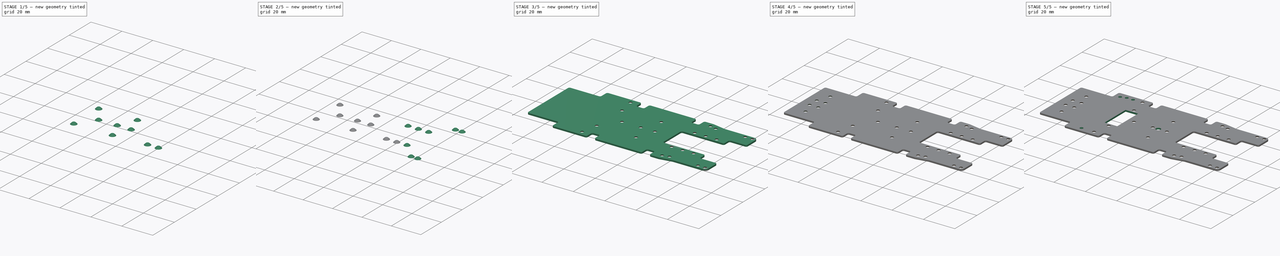
[diagram: build sequence overview — one tinted view per stage of 5, left to right]
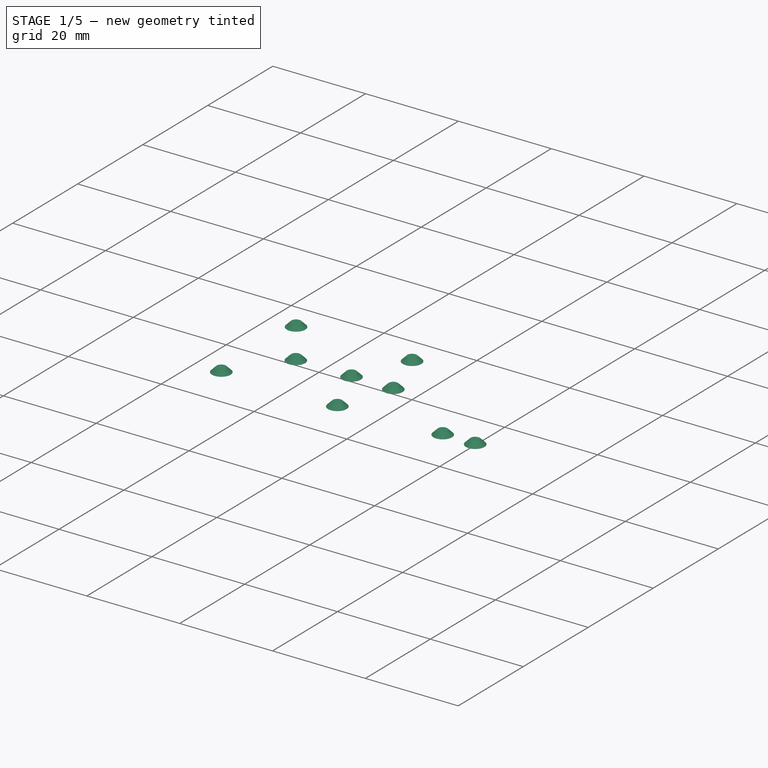
[diagram: stage 1 of 5 — iso view after this stage's code; geometry added in this stage tinted green]
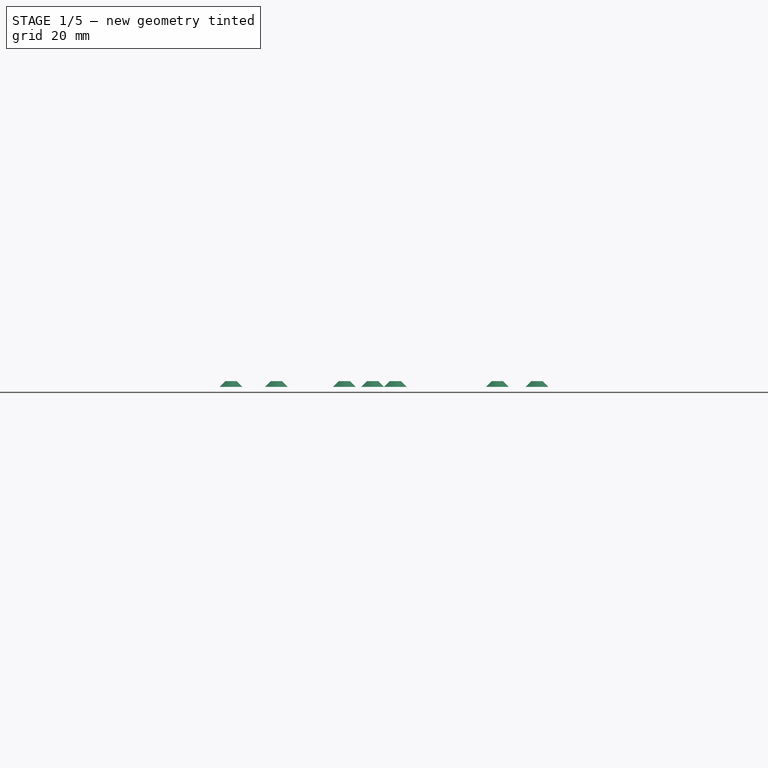
[diagram: stage 1 of 5 — front view after this stage's code; geometry added in this stage tinted green]
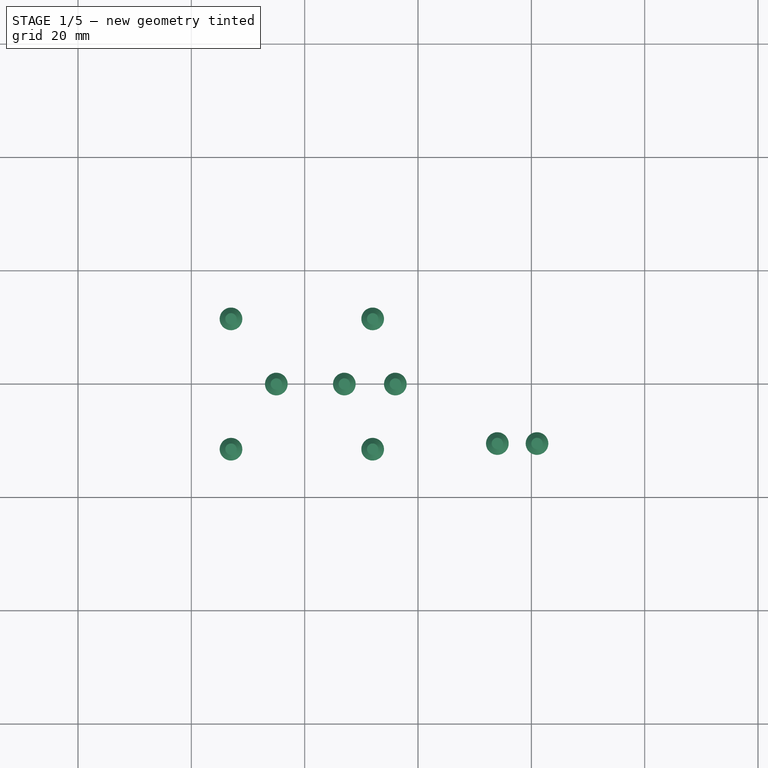
[diagram: stage 1 of 5 — top view after this stage's code; geometry added in this stage tinted green]
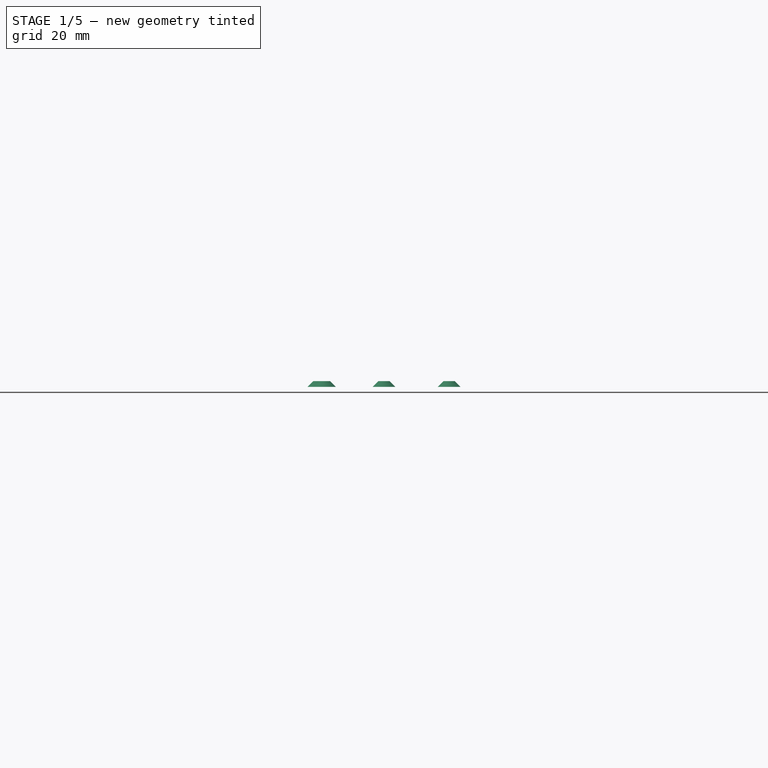
[diagram: stage 1 of 5 — right view after this stage's code; geometry added in this stage tinted green]
FCSTD DOCUMENT  (FreeCAD 0.14R3702 (Git))
Label: scaleauto-a
License: CC-BY 3.0
LicenseURL: http://creativecommons.org/licenses/by/3.0/
objects: Sketcher::SketchObject×65, Part::Loft×29, Part::Extrusion×7, Part::MultiFuse×3, Part::Cut×3, Part::Mirroring×1
note: 108 computed .brp shape members not serialized (recipe doc carries the construction recipe); baked Part::Feature solids carry a one-line shape summary decoded from their .brp

FEATURE [Sketcher::SketchObject] Sketch045
  Placement = pos=(0,0,1) rot=(0,0,1;0rad)
  sketch-geometry (1):
    g0: Circle CenterX=-43.5 CenterY=11 CenterZ=0 NormalX=0 NormalY=0 NormalZ=1 Radius=1
FEATURE [Sketcher::SketchObject] Sketch046
  sketch-geometry (1):
    g0: Circle CenterX=-43.5 CenterY=11 CenterZ=0 NormalX=0 NormalY=0 NormalZ=1 Radius=2
FEATURE [Part::Loft] Loft020
  Closed = false
  Placement = pos=(84.5,-21.5,0) rot=(0,0,1;0rad)
  Ruled = false
  Sections = -> [Sketch046,Sketch045]
  Solid = true
FEATURE [Sketcher::SketchObject] Sketch047
  Placement = pos=(0,0,1) rot=(0,0,1;0rad)
  sketch-geometry (1):
    g0: Circle CenterX=-43.5 CenterY=11 CenterZ=0 NormalX=0 NormalY=0 NormalZ=1 Radius=1
FEATURE [Sketcher::SketchObject] Sketch048
  sketch-geometry (1):
    g0: Circle CenterX=-43.5 CenterY=11 CenterZ=0 NormalX=0 NormalY=0 NormalZ=1 Radius=2
FEATURE [Part::Loft] Loft021
  Closed = false
  Placement = pos=(77.5,-21.5,0) rot=(0,0,1;0rad)
  Ruled = false
  Sections = -> [Sketch048,Sketch047]
  Solid = true
FEATURE [Sketcher::SketchObject] Sketch049
  Placement = pos=(-17,-9.5,0) rot=(0,0,1;0rad)
  sketch-geometry (4):
    g0: LineSegment StartX=0 StartY=0 StartZ=0 EndX=8 EndY=0 EndZ=0
    g1: LineSegment StartX=8 StartY=0 StartZ=0 EndX=8 EndY=19 EndZ=0
    g2: LineSegment StartX=8 StartY=19 StartZ=0 EndX=0 EndY=19 EndZ=0
    g3: LineSegment StartX=0 StartY=19 StartZ=0 EndX=0 EndY=0 EndZ=0
  constraints (9):
    c: Coincident(g0,g1)
    c: Coincident(g1,g2)
    c: Coincident(g2,g3)
    c: Coincident(g3,g0)
    c: Horizontal(g0)
    c: Horizontal(g2)
    c: Vertical(g1)
    c: Vertical(g3)
    c: Coincident(g0,g-1)
FEATURE [Sketcher::SketchObject] Sketch050
  Placement = pos=(0,0,1) rot=(0,0,1;0rad)
  sketch-geometry (1):
    g0: Circle CenterX=-43.5 CenterY=11 CenterZ=0 NormalX=0 NormalY=0 NormalZ=1 Radius=1
FEATURE [Sketcher::SketchObject] Sketch051
  sketch-geometry (1):
    g0: Circle CenterX=-43.5 CenterY=11 CenterZ=0 NormalX=0 NormalY=0 NormalZ=1 Radius=2
FEATURE [Part::Loft] Loft022
  Closed = false
  Placement = pos=(30.5,-22.5,0) rot=(0,0,1;0rad)
  Ruled = false
  Sections = -> [Sketch051,Sketch050]
  Solid = true
FEATURE [Sketcher::SketchObject] Sketch052
  Placement = pos=(0,0,1) rot=(0,0,1;0rad)
  sketch-geometry (1):
    g0: Circle CenterX=-43.5 CenterY=11 CenterZ=0 NormalX=0 NormalY=0 NormalZ=1 Radius=1
FEATURE [Sketcher::SketchObject] Sketch053
  sketch-geometry (1):
    g0: Circle CenterX=-43.5 CenterY=11 CenterZ=0 NormalX=0 NormalY=0 NormalZ=1 Radius=2
FEATURE [Part::Loft] Loft023
  Closed = false
  Placement = pos=(30.5,0.5,0) rot=(0,0,1;0rad)
  Ruled = false
  Sections = -> [Sketch053,Sketch052]
  Solid = true
FEATURE [Sketcher::SketchObject] Sketch054
  Placement = pos=(0,0,1) rot=(0,0,1;0rad)
  sketch-geometry (1):
    g0: Circle CenterX=-43.5 CenterY=11 CenterZ=0 NormalX=0 NormalY=0 NormalZ=1 Radius=1
FEATURE [Sketcher::SketchObject] Sketch055
  sketch-geometry (1):
    g0: Circle CenterX=-43.5 CenterY=11 CenterZ=0 NormalX=0 NormalY=0 NormalZ=1 Radius=2
FEATURE [Part::Loft] Loft024
  Closed = false
  Placement = pos=(55.5,-22.5,0) rot=(0,0,1;0rad)
  Ruled = false
  Sections = -> [Sketch055,Sketch054]
  Solid = true
FEATURE [Sketcher::SketchObject] Sketch056
  Placement = pos=(0,0,1) rot=(0,0,1;0rad)
  sketch-geometry (1):
    g0: Circle CenterX=-43.5 CenterY=11 CenterZ=0 NormalX=0 NormalY=0 NormalZ=1 Radius=1
FEATURE [Sketcher::SketchObject] Sketch057
  sketch-geometry (1):
    g0: Circle CenterX=-43.5 CenterY=11 CenterZ=0 NormalX=0 NormalY=0 NormalZ=1 Radius=2
FEATURE [Part::Loft] Loft025
  Closed = false
  Placement = pos=(55.5,0.5,0) rot=(0,0,1;0rad)
  Ruled = false
  Sections = -> [Sketch057,Sketch056]
  Solid = true
FEATURE [Sketcher::SketchObject] Sketch058
  Placement = pos=(0,0,1) rot=(0,0,1;0rad)
  sketch-geometry (1):
    g0: Circle CenterX=-43.5 CenterY=11 CenterZ=0 NormalX=0 NormalY=0 NormalZ=1 Radius=1
FEATURE [Sketcher::SketchObject] Sketch059
  sketch-geometry (1):
    g0: Circle CenterX=-43.5 CenterY=11 CenterZ=0 NormalX=0 NormalY=0 NormalZ=1 Radius=2
FEATURE [Part::Loft] Loft026
  Closed = false
  Placement = pos=(38.5,-11,0) rot=(0,0,1;0rad)
  Ruled = false
  Sections = -> [Sketch059,Sketch058]
  Solid = true
FEATURE [Sketcher::SketchObject] Sketch060
  Placement = pos=(0,0,1) rot=(0,0,1;0rad)
  sketch-geometry (1):
    g0: Circle CenterX=-43.5 CenterY=11 CenterZ=0 NormalX=0 NormalY=0 NormalZ=1 Radius=1
FEATURE [Sketcher::SketchObject] Sketch061
  sketch-geometry (1):
    g0: Circle CenterX=-43.5 CenterY=11 CenterZ=0 NormalX=0 NormalY=0 NormalZ=1 Radius=2
FEATURE [Part::Loft] Loft027
  Closed = false
  Placement = pos=(50.5,-11,0) rot=(0,0,1;0rad)
  Ruled = false
  Sections = -> [Sketch061,Sketch060]
  Solid = true
FEATURE [Sketcher::SketchObject] Sketch062
  Placement = pos=(0,0,1) rot=(0,0,1;0rad)
  sketch-geometry (1):
    g0: Circle CenterX=-43.5 CenterY=11 CenterZ=0 NormalX=0 NormalY=0 NormalZ=1 Radius=1
FEATURE [Sketcher::SketchObject] Sketch063
  sketch-geometry (1):
    g0: Circle CenterX=-43.5 CenterY=11 CenterZ=0 NormalX=0 NormalY=0 NormalZ=1 Radius=2
FEATURE [Part::Loft] Loft028
  Closed = false
  Placement = pos=(59.5,-11,0) rot=(0,0,1;0rad)
  Ruled = false
  Sections = -> [Sketch063,Sketch062]
  Solid = true
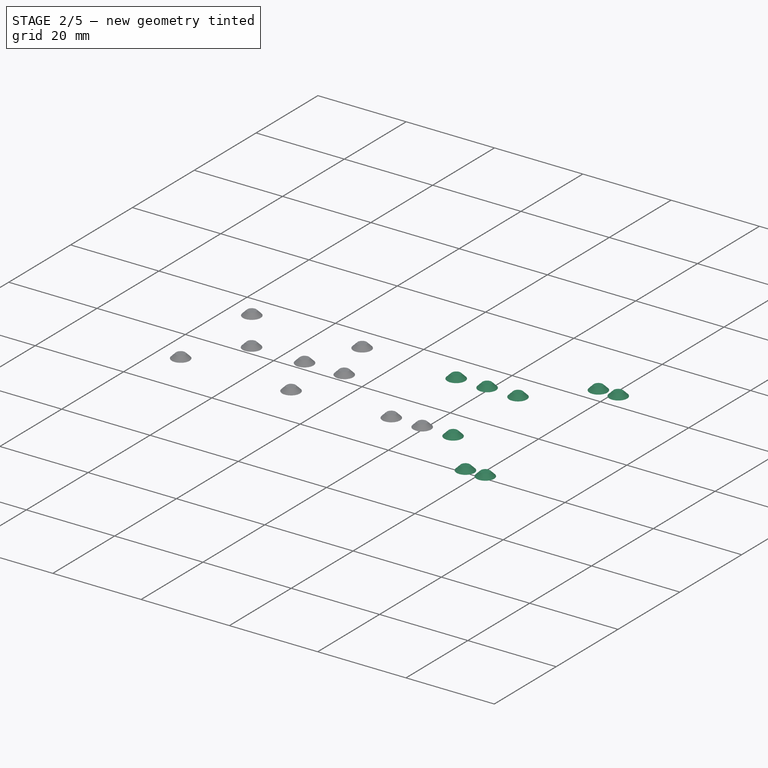
[diagram: stage 2 of 5 — iso view after this stage's code; geometry added in this stage tinted green]
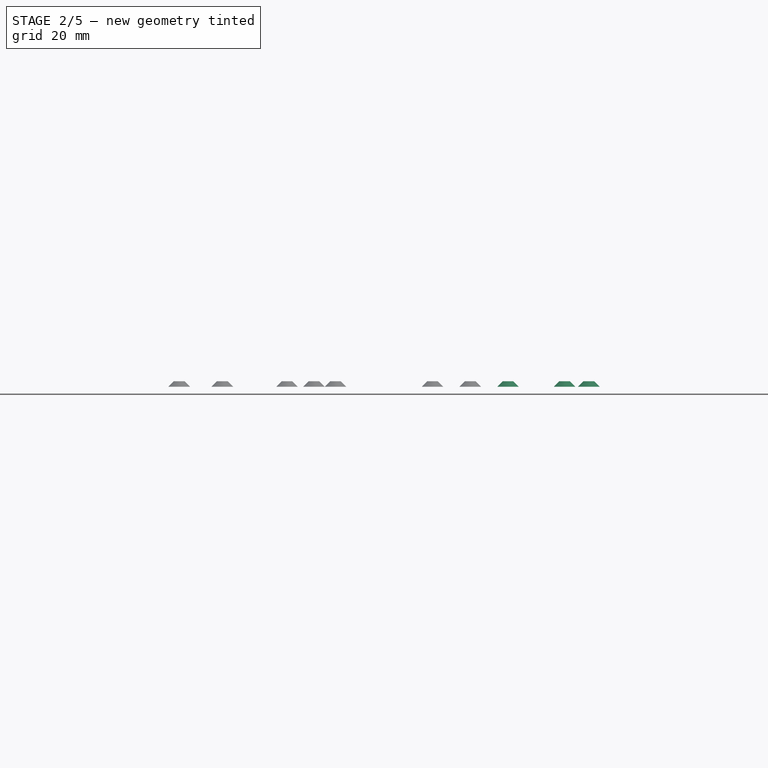
[diagram: stage 2 of 5 — front view after this stage's code; geometry added in this stage tinted green]
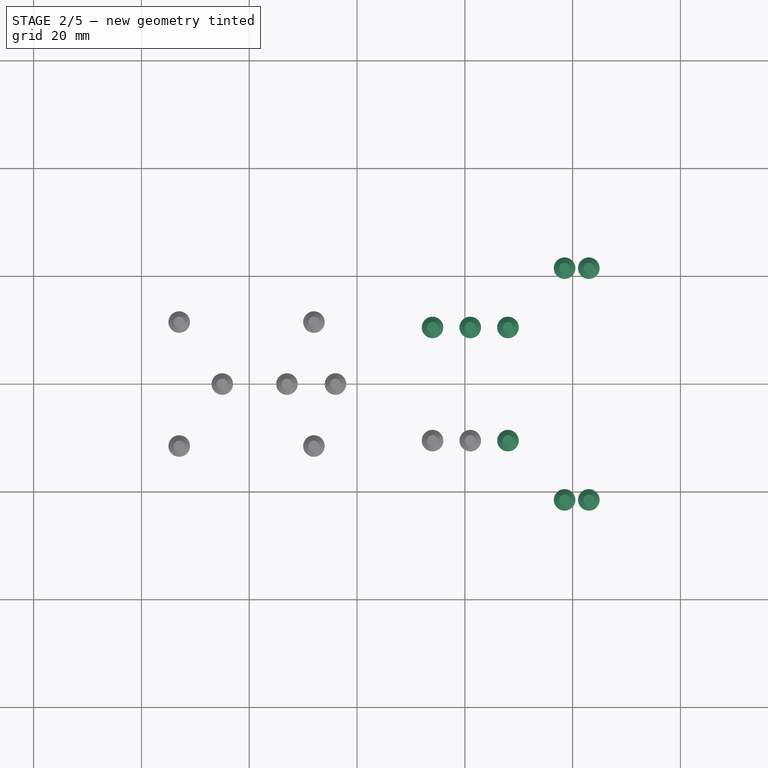
[diagram: stage 2 of 5 — top view after this stage's code; geometry added in this stage tinted green]
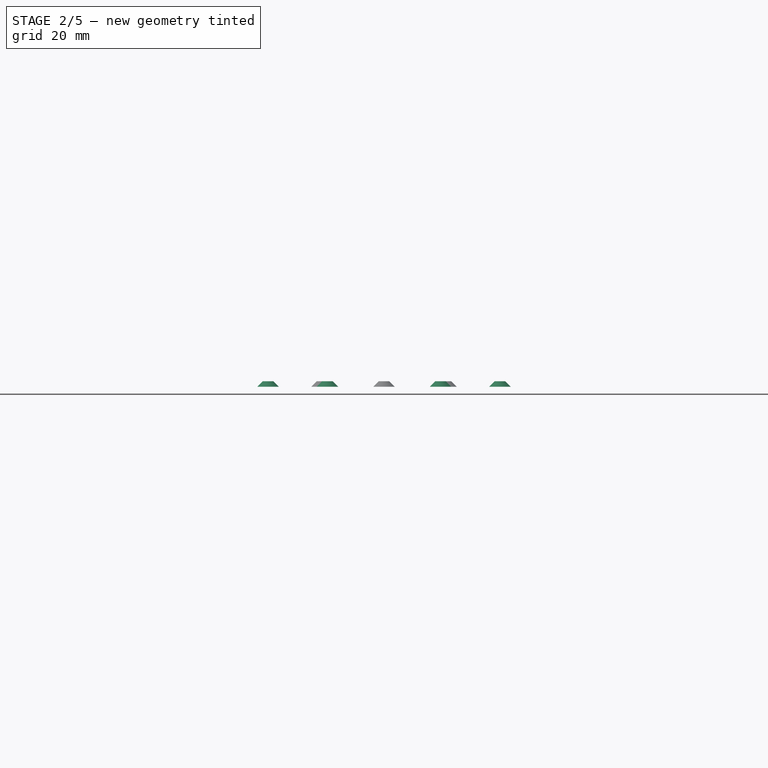
[diagram: stage 2 of 5 — right view after this stage's code; geometry added in this stage tinted green]
FEATURE [Sketcher::SketchObject] Sketch029
  Placement = pos=(0,0,1) rot=(0,0,1;0rad)
  sketch-geometry (1):
    g0: Circle CenterX=-43.5 CenterY=11 CenterZ=0 NormalX=0 NormalY=0 NormalZ=1 Radius=1
FEATURE [Sketcher::SketchObject] Sketch030
  sketch-geometry (1):
    g0: Circle CenterX=-43.5 CenterY=11 CenterZ=0 NormalX=0 NormalY=0 NormalZ=1 Radius=2
FEATURE [Part::Loft] Loft012
  Closed = false
  Placement = pos=(106.5,-32.5,0) rot=(0,0,1;0rad)
  Ruled = false
  Sections = -> [Sketch030,Sketch029]
  Solid = true
FEATURE [Sketcher::SketchObject] Sketch031
  Placement = pos=(0,0,1) rot=(0,0,1;0rad)
  sketch-geometry (1):
    g0: Circle CenterX=-43.5 CenterY=11 CenterZ=0 NormalX=0 NormalY=0 NormalZ=1 Radius=1
FEATURE [Sketcher::SketchObject] Sketch032
  sketch-geometry (1):
    g0: Circle CenterX=-43.5 CenterY=11 CenterZ=0 NormalX=0 NormalY=0 NormalZ=1 Radius=2
FEATURE [Part::Loft] Loft013
  Closed = false
  Placement = pos=(102,-32.5,0) rot=(0,0,1;0rad)
  Ruled = false
  Sections = -> [Sketch032,Sketch031]
  Solid = true
FEATURE [Sketcher::SketchObject] Sketch033
  Placement = pos=(0,0,1) rot=(0,0,1;0rad)
  sketch-geometry (1):
    g0: Circle CenterX=-43.5 CenterY=11 CenterZ=0 NormalX=0 NormalY=0 NormalZ=1 Radius=1
FEATURE [Sketcher::SketchObject] Sketch034
  sketch-geometry (1):
    g0: Circle CenterX=-43.5 CenterY=11 CenterZ=0 NormalX=0 NormalY=0 NormalZ=1 Radius=2
FEATURE [Part::Loft] Loft014
  Closed = false
  Placement = pos=(106.5,10.5,0) rot=(0,0,1;0rad)
  Ruled = false
  Sections = -> [Sketch034,Sketch033]
  Solid = true
FEATURE [Sketcher::SketchObject] Sketch035
  Placement = pos=(0,0,1) rot=(0,0,1;0rad)
  sketch-geometry (1):
    g0: Circle CenterX=-43.5 CenterY=11 CenterZ=0 NormalX=0 NormalY=0 NormalZ=1 Radius=1
FEATURE [Sketcher::SketchObject] Sketch036
  sketch-geometry (1):
    g0: Circle CenterX=-43.5 CenterY=11 CenterZ=0 NormalX=0 NormalY=0 NormalZ=1 Radius=2
FEATURE [Part::Loft] Loft015
  Closed = false
  Placement = pos=(102,10.5,0) rot=(0,0,1;0rad)
  Ruled = false
  Sections = -> [Sketch036,Sketch035]
  Solid = true
FEATURE [Sketcher::SketchObject] Sketch037
  Placement = pos=(0,0,1) rot=(0,0,1;0rad)
  sketch-geometry (1):
    g0: Circle CenterX=-43.5 CenterY=11 CenterZ=0 NormalX=0 NormalY=0 NormalZ=1 Radius=1
FEATURE [Sketcher::SketchObject] Sketch038
  sketch-geometry (1):
    g0: Circle CenterX=-43.5 CenterY=11 CenterZ=0 NormalX=0 NormalY=0 NormalZ=1 Radius=2
FEATURE [Part::Loft] Loft016
  Closed = false
  Placement = pos=(91.5,-0.5,0) rot=(0,0,1;0rad)
  Ruled = false
  Sections = -> [Sketch038,Sketch037]
  Solid = true
FEATURE [Sketcher::SketchObject] Sketch039
  Placement = pos=(0,0,1) rot=(0,0,1;0rad)
  sketch-geometry (1):
    g0: Circle CenterX=-43.5 CenterY=11 CenterZ=0 NormalX=0 NormalY=0 NormalZ=1 Radius=1
FEATURE [Sketcher::SketchObject] Sketch040
  sketch-geometry (1):
    g0: Circle CenterX=-43.5 CenterY=11 CenterZ=0 NormalX=0 NormalY=0 NormalZ=1 Radius=2
FEATURE [Part::Loft] Loft017
  Closed = false
  Placement = pos=(84.5,-0.5,0) rot=(0,0,1;0rad)
  Ruled = false
  Sections = -> [Sketch040,Sketch039]
  Solid = true
FEATURE [Sketcher::SketchObject] Sketch041
  Placement = pos=(0,0,1) rot=(0,0,1;0rad)
  sketch-geometry (1):
    g0: Circle CenterX=-43.5 CenterY=11 CenterZ=0 NormalX=0 NormalY=0 NormalZ=1 Radius=1
FEATURE [Sketcher::SketchObject] Sketch042
  sketch-geometry (1):
    g0: Circle CenterX=-43.5 CenterY=11 CenterZ=0 NormalX=0 NormalY=0 NormalZ=1 Radius=2
FEATURE [Part::Loft] Loft018
  Closed = false
  Placement = pos=(77.5,-0.5,0) rot=(0,0,1;0rad)
  Ruled = false
  Sections = -> [Sketch042,Sketch041]
  Solid = true
FEATURE [Sketcher::SketchObject] Sketch043
  Placement = pos=(0,0,1) rot=(0,0,1;0rad)
  sketch-geometry (1):
    g0: Circle CenterX=-43.5 CenterY=11 CenterZ=0 NormalX=0 NormalY=0 NormalZ=1 Radius=1
FEATURE [Sketcher::SketchObject] Sketch044
  sketch-geometry (1):
    g0: Circle CenterX=-43.5 CenterY=11 CenterZ=0 NormalX=0 NormalY=0 NormalZ=1 Radius=2
FEATURE [Part::Loft] Loft019
  Closed = false
  Placement = pos=(91.5,-21.5,0) rot=(0,0,1;0rad)
  Ruled = false
  Sections = -> [Sketch044,Sketch043]
  Solid = true
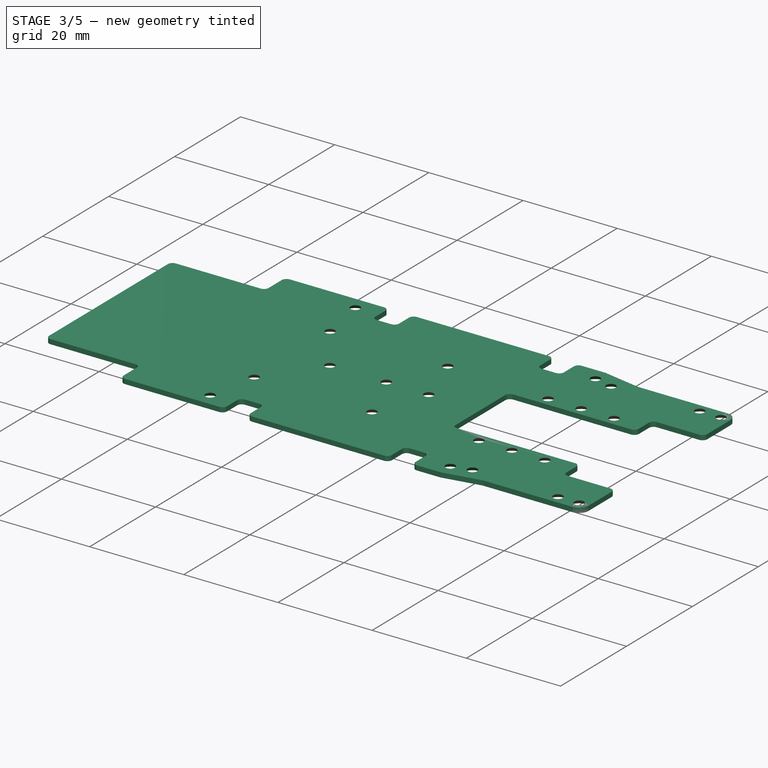
[diagram: stage 3 of 5 — iso view after this stage's code; geometry added in this stage tinted green]
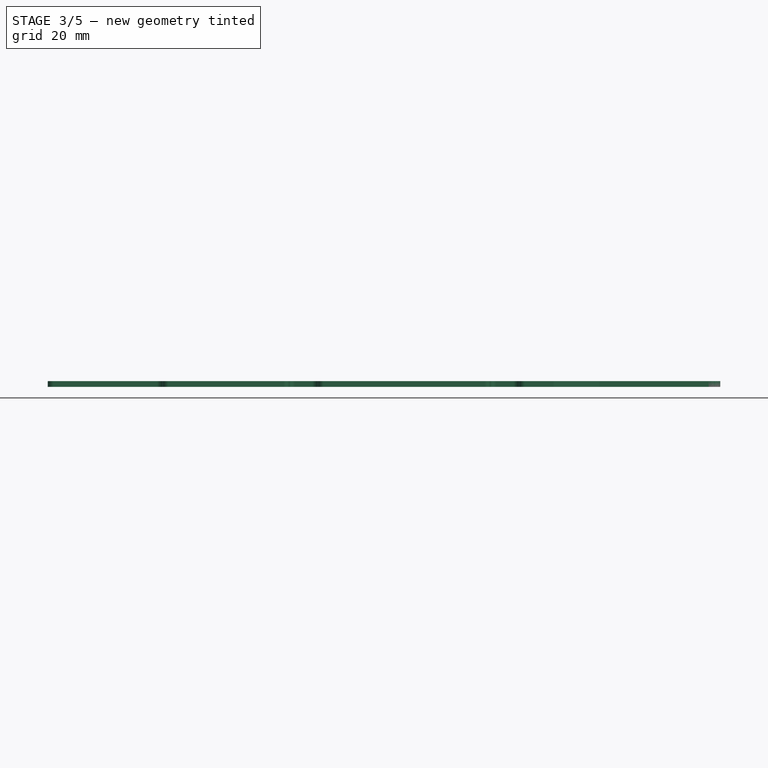
[diagram: stage 3 of 5 — front view after this stage's code; geometry added in this stage tinted green]
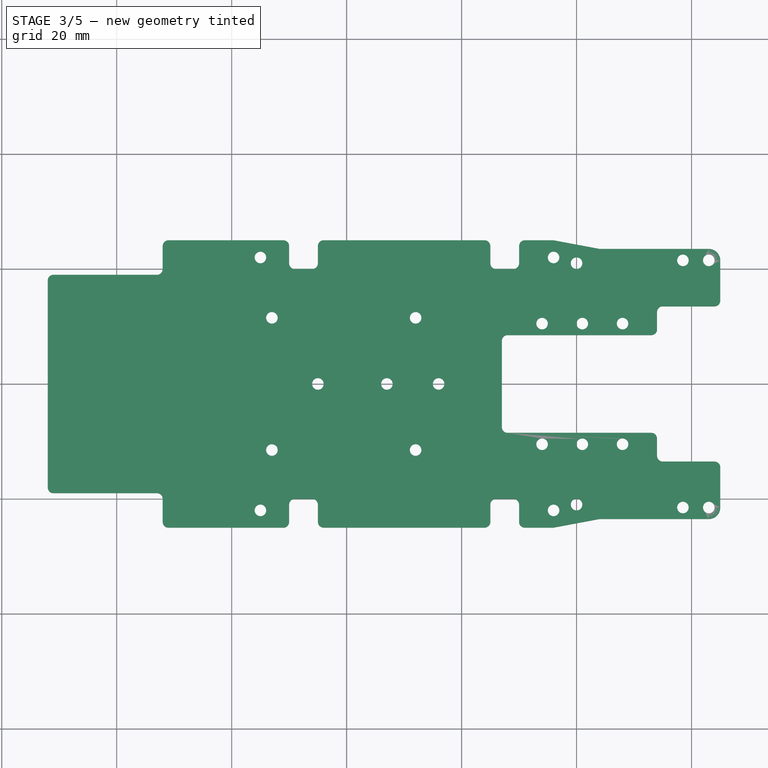
[diagram: stage 3 of 5 — top view after this stage's code; geometry added in this stage tinted green]
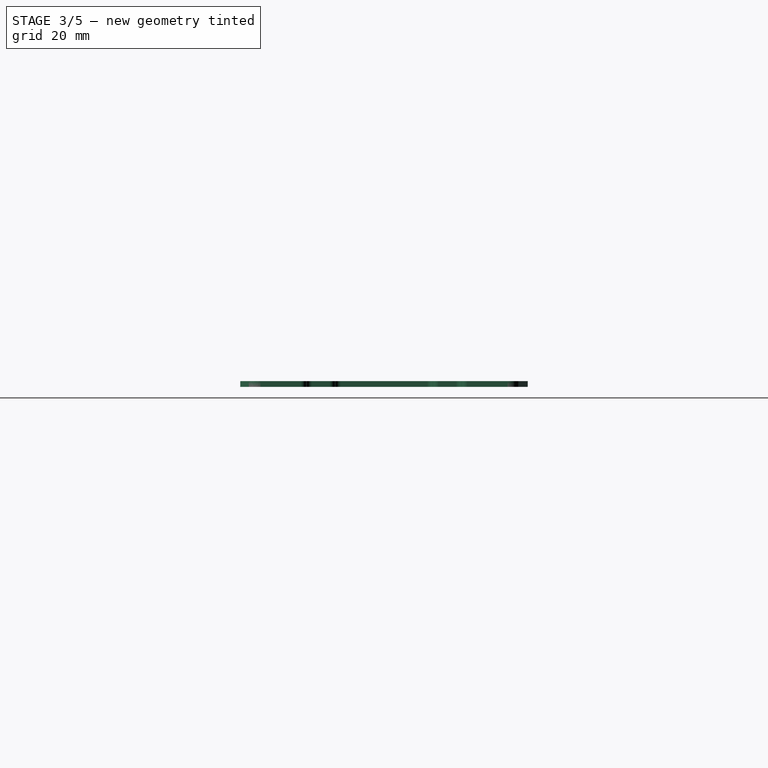
[diagram: stage 3 of 5 — right view after this stage's code; geometry added in this stage tinted green]
FEATURE [Sketcher::SketchObject] Sketch017
  Placement = pos=(0,0,1) rot=(0,0,1;0rad)
  sketch-geometry (1):
    g0: Circle CenterX=-43.5 CenterY=11 CenterZ=0 NormalX=0 NormalY=0 NormalZ=1 Radius=1
FEATURE [Sketcher::SketchObject] Sketch018
  sketch-geometry (1):
    g0: Circle CenterX=-43.5 CenterY=11 CenterZ=0 NormalX=0 NormalY=0 NormalZ=1 Radius=2
FEATURE [Part::Loft] Loft
  Closed = false
  Placement = pos=(28.5,11,0) rot=(0,0,1;0rad)
  Ruled = false
  Sections = -> [Sketch018,Sketch017]
  Solid = true
FEATURE [Sketcher::SketchObject] Sketch019
  Placement = pos=(0,0,1) rot=(0,0,1;0rad)
  sketch-geometry (1):
    g0: Circle CenterX=-43.5 CenterY=11 CenterZ=0 NormalX=0 NormalY=0 NormalZ=1 Radius=1
FEATURE [Sketcher::SketchObject] Sketch020
  sketch-geometry (1):
    g0: Circle CenterX=-43.5 CenterY=11 CenterZ=0 NormalX=0 NormalY=0 NormalZ=1 Radius=2
FEATURE [Part::Loft] Loft007
  Closed = false
  Placement = pos=(28.5,-33,0) rot=(0,0,1;0rad)
  Ruled = false
  Sections = -> [Sketch020,Sketch019]
  Solid = true
FEATURE [Sketcher::SketchObject] Sketch021
  Placement = pos=(0,0,1) rot=(0,0,1;0rad)
  sketch-geometry (1):
    g0: Circle CenterX=-43.5 CenterY=11 CenterZ=0 NormalX=0 NormalY=0 NormalZ=1 Radius=1
FEATURE [Sketcher::SketchObject] Sketch022
  sketch-geometry (1):
    g0: Circle CenterX=-43.5 CenterY=11 CenterZ=0 NormalX=0 NormalY=0 NormalZ=1 Radius=2
FEATURE [Part::Loft] Loft008
  Closed = false
  Placement = pos=(79.5,-33,0) rot=(0,0,1;0rad)
  Ruled = false
  Sections = -> [Sketch022,Sketch021]
  Solid = true
FEATURE [Sketcher::SketchObject] Sketch023
  Placement = pos=(0,0,1) rot=(0,0,1;0rad)
  sketch-geometry (1):
    g0: Circle CenterX=-43.5 CenterY=11 CenterZ=0 NormalX=0 NormalY=0 NormalZ=1 Radius=1
FEATURE [Sketcher::SketchObject] Sketch024
  sketch-geometry (1):
    g0: Circle CenterX=-43.5 CenterY=11 CenterZ=0 NormalX=0 NormalY=0 NormalZ=1 Radius=2
FEATURE [Part::Loft] Loft009
  Closed = false
  Placement = pos=(79.5,11,0) rot=(0,0,1;0rad)
  Ruled = false
  Sections = -> [Sketch024,Sketch023]
  Solid = true
FEATURE [Sketcher::SketchObject] Sketch025
  Placement = pos=(0,0,1) rot=(0,0,1;0rad)
  sketch-geometry (1):
    g0: Circle CenterX=-43.5 CenterY=11 CenterZ=0 NormalX=0 NormalY=0 NormalZ=1 Radius=1
FEATURE [Sketcher::SketchObject] Sketch026
  sketch-geometry (1):
    g0: Circle CenterX=-43.5 CenterY=11 CenterZ=0 NormalX=0 NormalY=0 NormalZ=1 Radius=2
FEATURE [Part::Loft] Loft010
  Closed = false
  Placement = pos=(83.5,10,0) rot=(0,0,1;0rad)
  Ruled = false
  Sections = -> [Sketch026,Sketch025]
  Solid = true
FEATURE [Sketcher::SketchObject] Sketch027
  Placement = pos=(0,0,1) rot=(0,0,1;0rad)
  sketch-geometry (1):
    g0: Circle CenterX=-43.5 CenterY=11 CenterZ=0 NormalX=0 NormalY=0 NormalZ=1 Radius=1
FEATURE [Sketcher::SketchObject] Sketch028
  sketch-geometry (1):
    g0: Circle CenterX=-43.5 CenterY=11 CenterZ=0 NormalX=0 NormalY=0 NormalZ=1 Radius=2
FEATURE [Part::Loft] Loft011
  Closed = false
  Placement = pos=(83.5,-32,0) rot=(0,0,1;0rad)
  Ruled = false
  Sections = -> [Sketch028,Sketch027]
  Solid = true
FEATURE [Part::Extrusion] Extrude
  Base = -> Sketch
  Dir = (0,0,1)
  Solid = true
FEATURE [Part::MultiFuse] Fusion
  Shapes = -> [Loft007,Loft,Loft008,Loft009,Loft010,Loft011,Loft013,Loft012,Loft014,Loft015,Loft016,Loft017,Loft018,Loft019,Loft020,Loft021,Loft022,Loft023,Loft024,Loft025,Loft026,Loft027,Loft028]
FEATURE [Part::Cut] Cut
  Base = -> Extrude
  Tool = -> Fusion
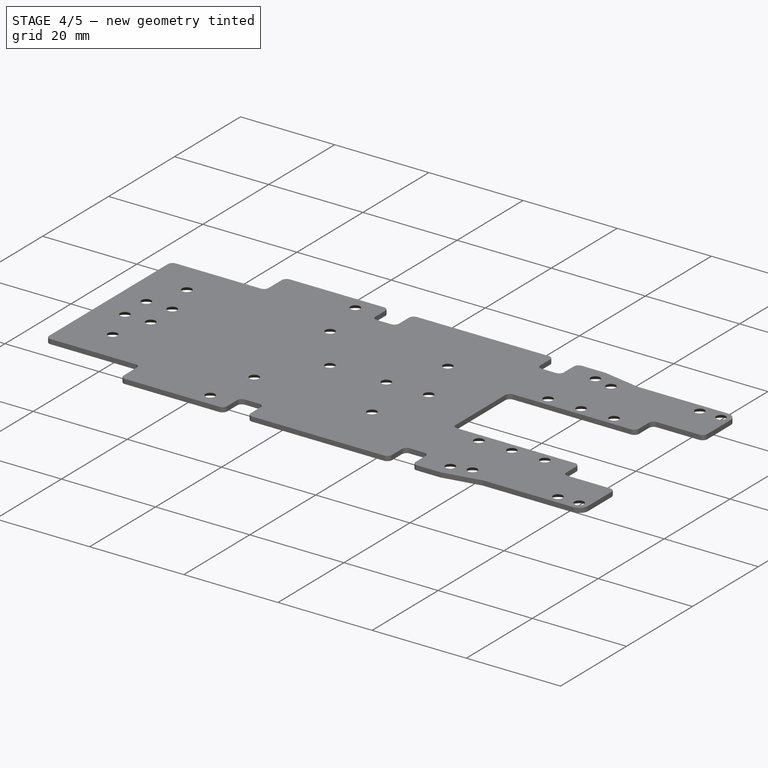
[diagram: stage 4 of 5 — iso view after this stage's code; geometry added in this stage tinted green]
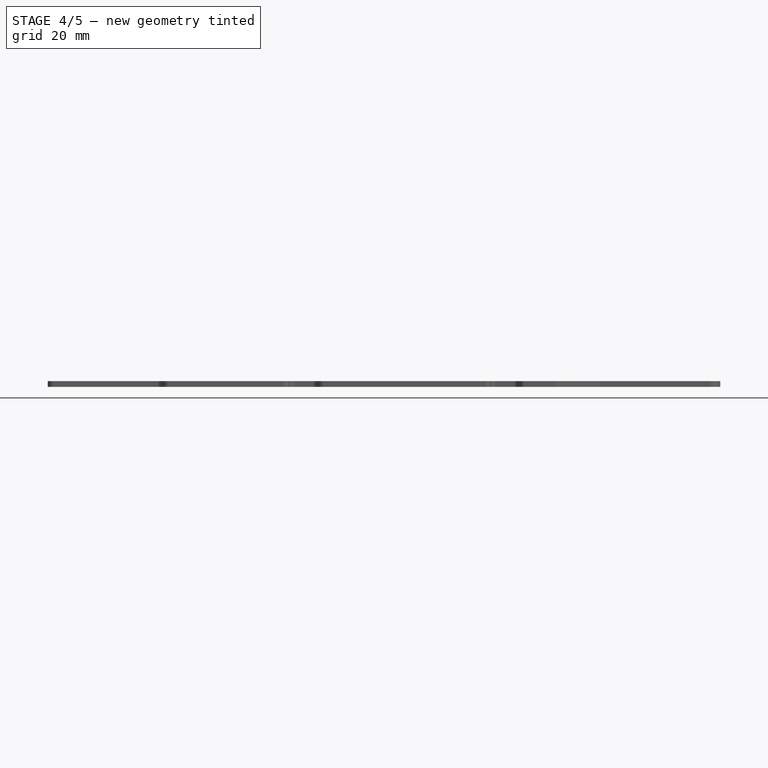
[diagram: stage 4 of 5 — front view after this stage's code; geometry added in this stage tinted green]
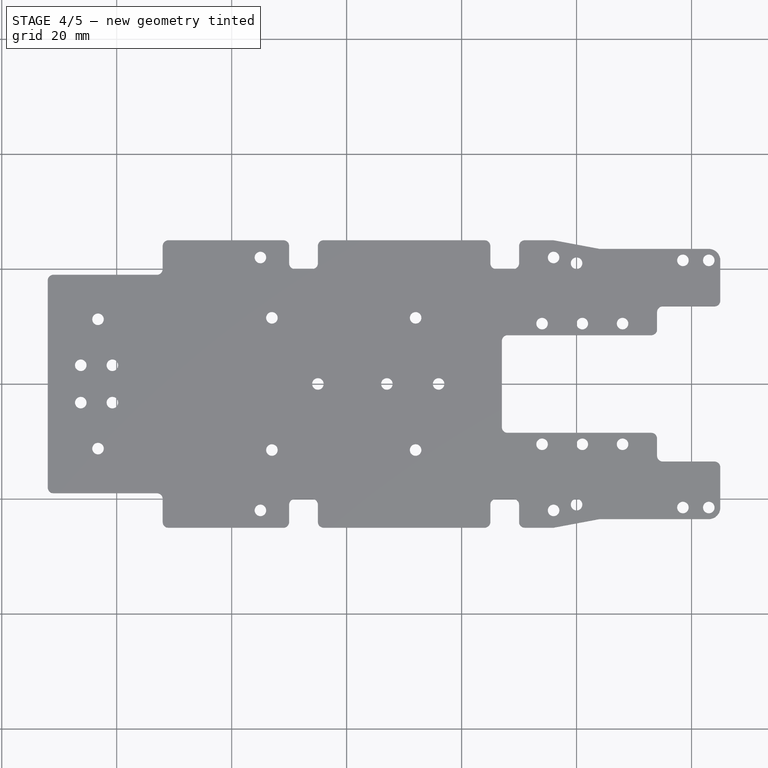
[diagram: stage 4 of 5 — top view after this stage's code; geometry added in this stage tinted green]
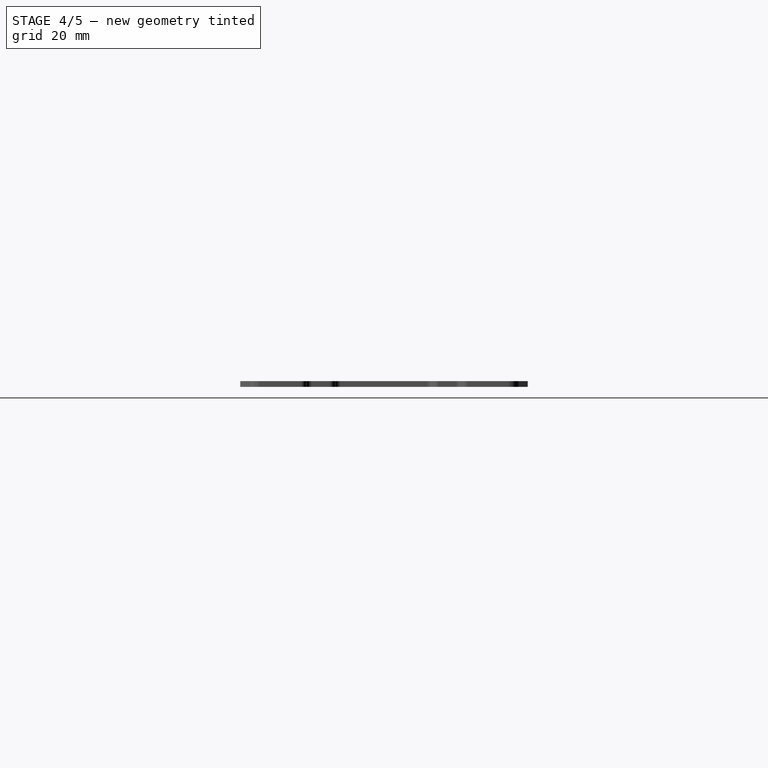
[diagram: stage 4 of 5 — right view after this stage's code; geometry added in this stage tinted green]
FEATURE [Sketcher::SketchObject] Sketch
  sketch-geometry (69):
    g0: ArcOfCircle CenterX=-51 CenterY=-18 CenterZ=0 NormalX=0 NormalY=0 NormalZ=1 Radius=1 StartAngle=3.14159 EndAngle=4.71239
    g1: LineSegment StartX=-51 StartY=-19 StartZ=0 EndX=-33 EndY=-19 EndZ=0
    g2: ArcOfCircle CenterX=-33 CenterY=-20 CenterZ=0 NormalX=0 NormalY=0 NormalZ=1 Radius=1 StartAngle=0 EndAngle=1.5708
    g3: LineSegment StartX=-52 StartY=-18 StartZ=0 EndX=-52 EndY=18 EndZ=0
    g4: ArcOfCircle CenterX=-51 CenterY=18 CenterZ=0 NormalX=0 NormalY=0 NormalZ=1 Radius=0.999999 StartAngle=1.5708 EndAngle=3.14159
    g5: LineSegment StartX=-51 StartY=19 StartZ=0 EndX=-33 EndY=19 EndZ=0
    g6: ArcOfCircle CenterX=-33 CenterY=20 CenterZ=0 NormalX=0 NormalY=0 NormalZ=1 Radius=1 StartAngle=4.71239 EndAngle=6.28318
    g7: LineSegment StartX=-32 StartY=20 StartZ=0 EndX=-32 EndY=24 EndZ=0
    g8: ArcOfCircle CenterX=-31 CenterY=24 CenterZ=0 NormalX=0 NormalY=0 NormalZ=1 Radius=1 StartAngle=1.5708 EndAngle=3.14159
    g9: LineSegment StartX=36 StartY=25 StartZ=0 EndX=44 EndY=23.5 EndZ=0
    g10: ArcOfCircle CenterX=64 CenterY=14.5 CenterZ=0 NormalX=0 NormalY=0 NormalZ=1 Radius=1 StartAngle=4.71239 EndAngle=6.28319
    g11: LineSegment StartX=64 StartY=13.5 StartZ=0 EndX=55 EndY=13.5 EndZ=0
    g12: ArcOfCircle CenterX=55 CenterY=12.5 CenterZ=0 NormalX=0 NormalY=0 NormalZ=1 Radius=1 StartAngle=1.5708 EndAngle=3.14159
    g13: LineSegment StartX=54 StartY=12.5 StartZ=0 EndX=54 EndY=9.5 EndZ=0
    g14: ArcOfCircle CenterX=53 CenterY=9.5 CenterZ=0 NormalX=0 NormalY=0 NormalZ=1 Radius=1 StartAngle=4.71239 EndAngle=6.28319
    g15: LineSegment StartX=53 StartY=8.5 StartZ=0 EndX=28 EndY=8.5 EndZ=0
    g16: ArcOfCircle CenterX=28 CenterY=7.5 CenterZ=0 NormalX=0 NormalY=0 NormalZ=1 Radius=1 StartAngle=1.5708 EndAngle=3.14159
    g17: LineSegment StartX=27 StartY=7.5 StartZ=0 EndX=27 EndY=-7.5 EndZ=0
    g18: ArcOfCircle CenterX=28 CenterY=-7.5 CenterZ=0 NormalX=0 NormalY=0 NormalZ=1 Radius=1 StartAngle=3.14159 EndAngle=4.71239
    g19: LineSegment StartX=28 StartY=-8.5 StartZ=0 EndX=53 EndY=-8.5 EndZ=0
    g20: ArcOfCircle CenterX=53 CenterY=-9.5 CenterZ=0 NormalX=0 NormalY=0 NormalZ=1 Radius=1 StartAngle=0 EndAngle=1.5708
    g21: LineSegment StartX=54 StartY=-9.5 StartZ=0 EndX=54 EndY=-12.5 EndZ=0
    g22: ArcOfCircle CenterX=55 CenterY=-12.5 CenterZ=0 NormalX=0 NormalY=0 NormalZ=1 Radius=1 StartAngle=3.14159 EndAngle=4.71239
    g23: LineSegment StartX=55 StartY=-13.5 StartZ=0 EndX=64 EndY=-13.5 EndZ=0
    g24: ArcOfCircle CenterX=64 CenterY=-14.5 CenterZ=0 NormalX=0 NormalY=0 NormalZ=1 Radius=1 StartAngle=0 EndAngle=1.5708
    g25: LineSegment StartX=44 StartY=-23.5 StartZ=0 EndX=36 EndY=-25 EndZ=0
    g26: ArcOfCircle CenterX=-31 CenterY=-24 CenterZ=0 NormalX=0 NormalY=0 NormalZ=1 Radius=1 StartAngle=3.14159 EndAngle=4.71239
    g27: LineSegment StartX=-32 StartY=-24 StartZ=0 EndX=-32 EndY=-20 EndZ=0
    g28: GeomPoint [constr] X=-33 Y=-19 Z=0
    g29: LineSegment StartX=-31 StartY=25 StartZ=0 EndX=-11 EndY=25 EndZ=0
    g30: ArcOfCircle CenterX=-11 CenterY=24 CenterZ=0 NormalX=0 NormalY=0 NormalZ=1 Radius=1 StartAngle=0 EndAngle=1.5708
    g31: LineSegment StartX=-10 StartY=24 StartZ=0 EndX=-10 EndY=21 EndZ=0
    g32: ArcOfCircle CenterX=-9 CenterY=21 CenterZ=0 NormalX=0 NormalY=0 NormalZ=1 Radius=1 StartAngle=3.14159 EndAngle=4.71239
    g33: LineSegment StartX=-9 StartY=20 StartZ=0 EndX=-6 EndY=20 EndZ=0
    g34: ArcOfCircle CenterX=-6 CenterY=21 CenterZ=0 NormalX=0 NormalY=0 NormalZ=1 Radius=1 StartAngle=4.71239 EndAngle=6.28319
    g35: LineSegment StartX=-5 StartY=21 StartZ=0 EndX=-5 EndY=24 EndZ=0
    g36: ArcOfCircle CenterX=-4 CenterY=24 CenterZ=0 NormalX=0 NormalY=0 NormalZ=1 Radius=1 StartAngle=1.5708 EndAngle=3.14159
    g37: LineSegment StartX=-31 StartY=-25 StartZ=0 EndX=-11 EndY=-25 EndZ=0
    g38: ArcOfCircle CenterX=-11 CenterY=-24 CenterZ=0 NormalX=0 NormalY=0 NormalZ=1 Radius=1 StartAngle=4.71239 EndAngle=6.28319
    g39: LineSegment StartX=-10 StartY=-24 StartZ=0 EndX=-10 EndY=-21 EndZ=0
    g40: ArcOfCircle CenterX=-9 CenterY=-21 CenterZ=0 NormalX=0 NormalY=0 NormalZ=1 Radius=1 StartAngle=1.5708 EndAngle=3.14159
    g41: LineSegment StartX=-9 StartY=-20 StartZ=0 EndX=-6 EndY=-20 EndZ=0
    g42: ArcOfCircle CenterX=-6 CenterY=-21 CenterZ=0 NormalX=0 NormalY=0 NormalZ=1 Radius=1 StartAngle=0 EndAngle=1.5708
    g43: LineSegment StartX=-5 StartY=-21 StartZ=0 EndX=-5 EndY=-24 EndZ=0
    g44: ArcOfCircle CenterX=-4 CenterY=-24 CenterZ=0 NormalX=0 NormalY=0 NormalZ=1 Radius=1 StartAngle=3.14159 EndAngle=4.71239
    g45: LineSegment StartX=-4 StartY=25 StartZ=0 EndX=24 EndY=25 EndZ=0
    g46: ArcOfCircle CenterX=24 CenterY=24 CenterZ=0 NormalX=0 NormalY=0 NormalZ=1 Radius=1 StartAngle=0 EndAngle=1.5708
    g47: LineSegment StartX=25 StartY=24 StartZ=0 EndX=25 EndY=21 EndZ=0
    g48: ArcOfCircle CenterX=26 CenterY=21 CenterZ=0 NormalX=0 NormalY=0 NormalZ=1 Radius=1 StartAngle=3.14159 EndAngle=4.71239
    g49: LineSegment StartX=26 StartY=20 StartZ=0 EndX=29 EndY=20 EndZ=0
    g50: ArcOfCircle CenterX=29 CenterY=21 CenterZ=0 NormalX=0 NormalY=0 NormalZ=1 Radius=1 StartAngle=4.71239 EndAngle=6.28319
    g51: LineSegment StartX=30 StartY=21 StartZ=0 EndX=30 EndY=24 EndZ=0
    g52: ArcOfCircle CenterX=31 CenterY=24 CenterZ=0 NormalX=0 NormalY=0 NormalZ=1 Radius=1 StartAngle=1.5708 EndAngle=3.14159
    g53: LineSegment StartX=31 StartY=25 StartZ=0 EndX=36 EndY=25 EndZ=0
    g54: LineSegment StartX=-4 StartY=-25 StartZ=0 EndX=24 EndY=-25 EndZ=0
    g55: ArcOfCircle CenterX=24 CenterY=-24 CenterZ=0 NormalX=0 NormalY=0 NormalZ=1 Radius=1 StartAngle=4.71239 EndAngle=6.28319
    g56: LineSegment StartX=25 StartY=-24 StartZ=0 EndX=25 EndY=-21 EndZ=0
    g57: ArcOfCircle CenterX=26 CenterY=-21 CenterZ=0 NormalX=0 NormalY=0 NormalZ=1 Radius=1 StartAngle=1.5708 EndAngle=3.14159
    g58: LineSegment StartX=26 StartY=-20 StartZ=0 EndX=29 EndY=-20 EndZ=0
    g59: ArcOfCircle CenterX=29 CenterY=-21 CenterZ=0 NormalX=0 NormalY=0 NormalZ=1 Radius=1 StartAngle=0 EndAngle=1.5708
    g60: LineSegment StartX=30 StartY=-21 StartZ=0 EndX=30 EndY=-24 EndZ=0
    g61: ArcOfCircle CenterX=31 CenterY=-24 CenterZ=0 NormalX=0 NormalY=0 NormalZ=1 Radius=1 StartAngle=3.14159 EndAngle=4.71239
    g62: LineSegment StartX=31 StartY=-25 StartZ=0 EndX=36 EndY=-25 EndZ=0
    g63: ArcOfCircle CenterX=63 CenterY=21.5 CenterZ=0 NormalX=0 NormalY=0 NormalZ=1 Radius=2 StartAngle=0 EndAngle=1.5708
    g64: LineSegment StartX=63 StartY=23.5 StartZ=0 EndX=44 EndY=23.5 EndZ=0
    g65: LineSegment StartX=65 StartY=21.5 StartZ=0 EndX=65 EndY=14.5 EndZ=0
    g66: ArcOfCircle CenterX=63 CenterY=-21.5 CenterZ=0 NormalX=0 NormalY=0 NormalZ=1 Radius=2 StartAngle=4.71239 EndAngle=6.28319
    g67: LineSegment StartX=65 StartY=-21.5 StartZ=0 EndX=65 EndY=-14.5 EndZ=0
    g68: LineSegment StartX=63 StartY=-23.5 StartZ=0 EndX=44 EndY=-23.5 EndZ=0
  constraints (107):
    c: Horizontal(g1)
    c: Coincident(g3,g0)
    c: Vertical(g3)
    c: Coincident(g5,g4)
    c: Horizontal(g5)
    c: Tangent(g5,g4)
    c: Coincident(g7,g6)
    c: Vertical(g7)
    c: Coincident(g11,g10)
    c: Horizontal(g11)
    c: Coincident(g12,g11)
    c: Coincident(g13,g12)
    c: Vertical(g13)
    c: Coincident(g14,g13)
    c: Coincident(g15,g14)
    c: Horizontal(g15)
    c: Coincident(g16,g15)
    c: Coincident(g17,g16)
    c: Vertical(g17)
    c: Coincident(g18,g17)
    c: Coincident(g19,g18)
    c: Horizontal(g19)
    c: Coincident(g20,g19)
    c: Coincident(g21,g20)
    c: Vertical(g21)
    c: Coincident(g22,g21)
    c: Coincident(g23,g22)
    c: Horizontal(g23)
    c: Coincident(g24,g23)
    c: Coincident(g27,g26)
    c: Coincident(g27,g2)
    c: Vertical(g27)
    c: Tangent(g27,g8)
    c: Coincident(g28,g1)
    c: Coincident(g0,g1)
    c: Coincident(g1,g2)
    c: Coincident(g3,g4)
    c: Coincident(g5,g6)
    c: Coincident(g7,g8)
    c: Coincident(g29,g8)
    c: Horizontal(g29)
    c: Tangent(g29,g8)
    c: Coincident(g30,g29)
    c: Coincident(g31,g30)
    c: Vertical(g31)
    c: Coincident(g32,g31)
    c: Coincident(g35,g34)
    c: Vertical(g35)
    c: Coincident(g36,g35)
    c: Coincident(g33,g32)
    c: Coincident(g34,g33)
    c: Coincident(g37,g26)
    c: Horizontal(g37)
    c: Coincident(g39,g38)
    c: Vertical(g39)
    c: Coincident(g40,g39)
    c: Coincident(g41,g40)
    c: Horizontal(g41)
    c: Coincident(g42,g41)
    c: Coincident(g43,g42)
    c: Vertical(g43)
    c: Tangent(g43,g36)
    c: Coincident(g37,g38)
    c: Coincident(g44,g43)
    c: Coincident(g45,g36)
    c: Horizontal(g45)
    c: Coincident(g46,g45)
    c: Coincident(g47,g46)
    c: Vertical(g47)
    c: Coincident(g48,g47)
    c: Coincident(g49,g48)
    c: Coincident(g50,g49)
    c: Coincident(g51,g50)
    c: Vertical(g51)
    c: Coincident(g52,g51)
    c: Coincident(g53,g52)
    c: Coincident(g53,g9)
    c: Horizontal(g53)
    c: Tangent(g53,g46)
    c: Horizontal(g54)
    c: Coincident(g55,g54)
    c: Coincident(g56,g55)
    c: Vertical(g56)
    c: Tangent(g56,g46)
    c: Coincident(g58,g57)
    c: Horizontal(g58)
    c: Coincident(g59,g58)
    c: Coincident(g60,g59)
    c: Vertical(g60)
    c: Coincident(g61,g60)
    c: Coincident(g62,g61)
    c: Coincident(g62,g25)
    c: Horizontal(g62)
    c: Coincident(g54,g44)
    c: Coincident(g56,g57)
    c: Coincident(g64,g63)
    c: Coincident(g65,g63)
    c: Coincident(g65,g10)
    c: Vertical(g65)
    c: Coincident(g67,g66)
    c: Coincident(g67,g24)
    c: Vertical(g67)
    c: Tangent(g67,g63)
    c: Coincident(g68,g66)
    c: Coincident(g68,g25)
    c: Horizontal(g68)
    c: Coincident(g9,g64)
FEATURE [Sketcher::SketchObject] Sketch005
  Placement = pos=(0,0,1) rot=(0,0,1;0rad)
  sketch-geometry (1):
    g0: Circle CenterX=-43.5 CenterY=11 CenterZ=0 NormalX=0 NormalY=0 NormalZ=1 Radius=1
FEATURE [Sketcher::SketchObject] Sketch006
  sketch-geometry (1):
    g0: Circle CenterX=-43.5 CenterY=11 CenterZ=0 NormalX=0 NormalY=0 NormalZ=1 Radius=2
FEATURE [Part::Loft] Loft001
  Closed = false
  Placement = pos=(-2.75,-7.75,0) rot=(0,0,1;0rad)
  Ruled = false
  Sections = -> [Sketch006,Sketch005]
  Solid = true
FEATURE [Sketcher::SketchObject] Sketch007
  Placement = pos=(0,0,1) rot=(0,0,1;0rad)
  sketch-geometry (1):
    g0: Circle CenterX=-43.5 CenterY=11 CenterZ=0 NormalX=0 NormalY=0 NormalZ=1 Radius=1
FEATURE [Sketcher::SketchObject] Sketch008
  sketch-geometry (1):
    g0: Circle CenterX=-43.5 CenterY=11 CenterZ=0 NormalX=0 NormalY=0 NormalZ=1 Radius=2
FEATURE [Part::Loft] Loft002
  Closed = false
  Placement = pos=(2.75,-7.75,0) rot=(0,0,1;0rad)
  Ruled = false
  Sections = -> [Sketch008,Sketch007]
  Solid = true
FEATURE [Sketcher::SketchObject] Sketch009
  sketch-geometry (1):
    g0: Circle CenterX=-43.5 CenterY=11 CenterZ=0 NormalX=0 NormalY=0 NormalZ=1 Radius=2
FEATURE [Sketcher::SketchObject] Sketch010
  Placement = pos=(0,0,1) rot=(0,0,1;0rad)
  sketch-geometry (1):
    g0: Circle CenterX=-43.5 CenterY=11 CenterZ=0 NormalX=0 NormalY=0 NormalZ=1 Radius=1
FEATURE [Sketcher::SketchObject] Sketch011
  Placement = pos=(0,0,1) rot=(0,0,1;0rad)
  sketch-geometry (1):
    g0: Circle CenterX=-43.5 CenterY=11 CenterZ=0 NormalX=0 NormalY=0 NormalZ=1 Radius=1
FEATURE [Part::Loft] Loft003
  Closed = false
  Placement = pos=(-2.75,-14.25,0) rot=(0,0,1;0rad)
  Ruled = false
  Sections = -> [Sketch009,Sketch011]
  Solid = true
FEATURE [Sketcher::SketchObject] Sketch012
  sketch-geometry (1):
    g0: Circle CenterX=-43.5 CenterY=11 CenterZ=0 NormalX=0 NormalY=0 NormalZ=1 Radius=2
FEATURE [Part::Loft] Loft004
  Closed = false
  Placement = pos=(2.75,-14.25,0) rot=(0,0,1;0rad)
  Ruled = false
  Sections = -> [Sketch012,Sketch010]
  Solid = true
FEATURE [Sketcher::SketchObject] Sketch013
  Placement = pos=(0,0,1) rot=(0,0,1;0rad)
  sketch-geometry (1):
    g0: Circle CenterX=-43.5 CenterY=11 CenterZ=0 NormalX=0 NormalY=0 NormalZ=1 Radius=1
FEATURE [Sketcher::SketchObject] Sketch014
  sketch-geometry (1):
    g0: Circle CenterX=-43.5 CenterY=11 CenterZ=0 NormalX=0 NormalY=0 NormalZ=1 Radius=2
FEATURE [Part::Loft] Loft005
  Closed = false
  Placement = pos=(0.25,-22.25,0) rot=(0,0,1;0rad)
  Ruled = false
  Sections = -> [Sketch014,Sketch013]
  Solid = true
FEATURE [Sketcher::SketchObject] Sketch015
  Placement = pos=(0,0,1) rot=(0,0,1;0rad)
  sketch-geometry (1):
    g0: Circle CenterX=-43.5 CenterY=11 CenterZ=0 NormalX=0 NormalY=0 NormalZ=1 Radius=1
FEATURE [Sketcher::SketchObject] Sketch016
  sketch-geometry (1):
    g0: Circle CenterX=-43.5 CenterY=11 CenterZ=0 NormalX=0 NormalY=0 NormalZ=1 Radius=2
FEATURE [Part::Loft] Loft006
  Closed = false
  Placement = pos=(0.25,0.25,0) rot=(0,0,1;0rad)
  Ruled = false
  Sections = -> [Sketch016,Sketch015]
  Solid = true
FEATURE [Part::MultiFuse] Fusion001
  Shapes = -> [Loft001,Loft002,Loft004,Loft003,Loft005,Loft006]
FEATURE [Part::Cut] Cut001
  Base = -> Cut
  Tool = -> Fusion001
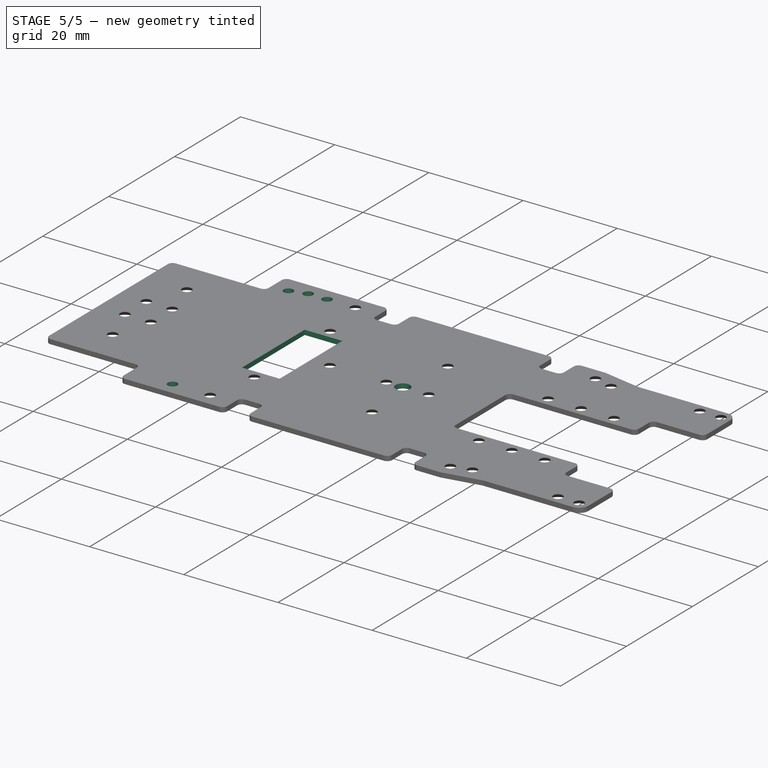
[diagram: stage 5 of 5 — iso view after this stage's code; geometry added in this stage tinted green]
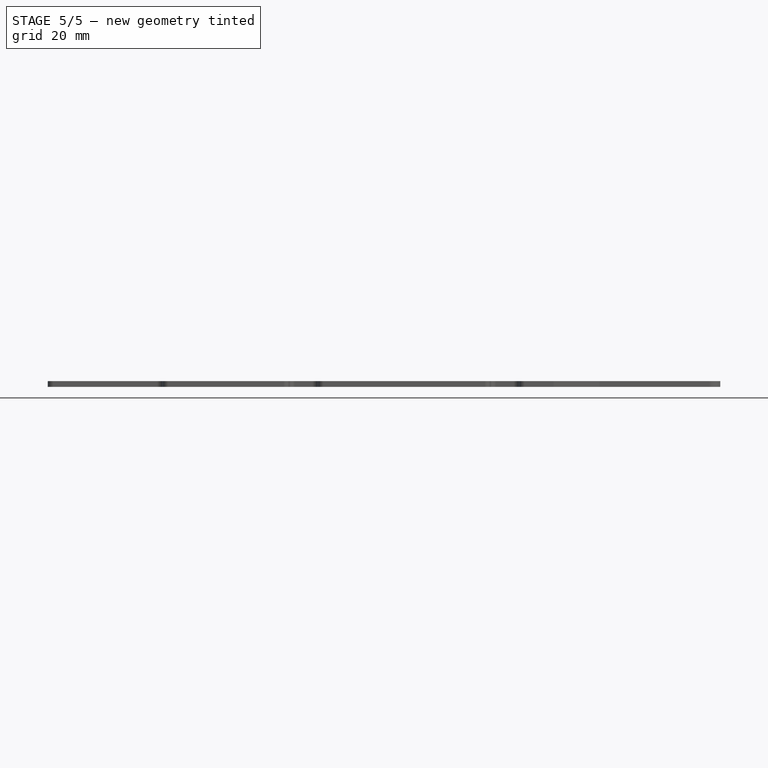
[diagram: stage 5 of 5 — front view after this stage's code; geometry added in this stage tinted green]
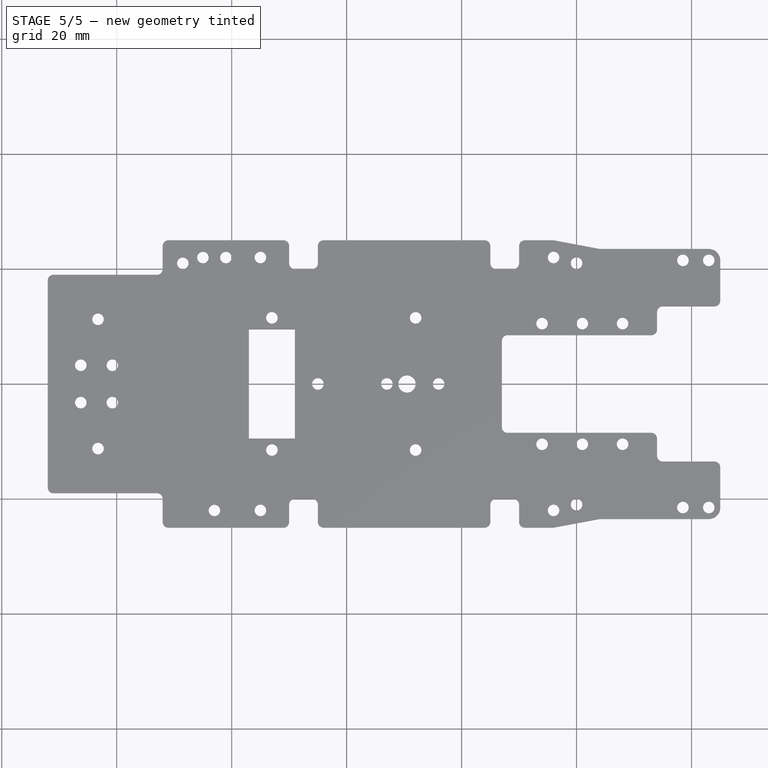
[diagram: stage 5 of 5 — top view after this stage's code; geometry added in this stage tinted green]
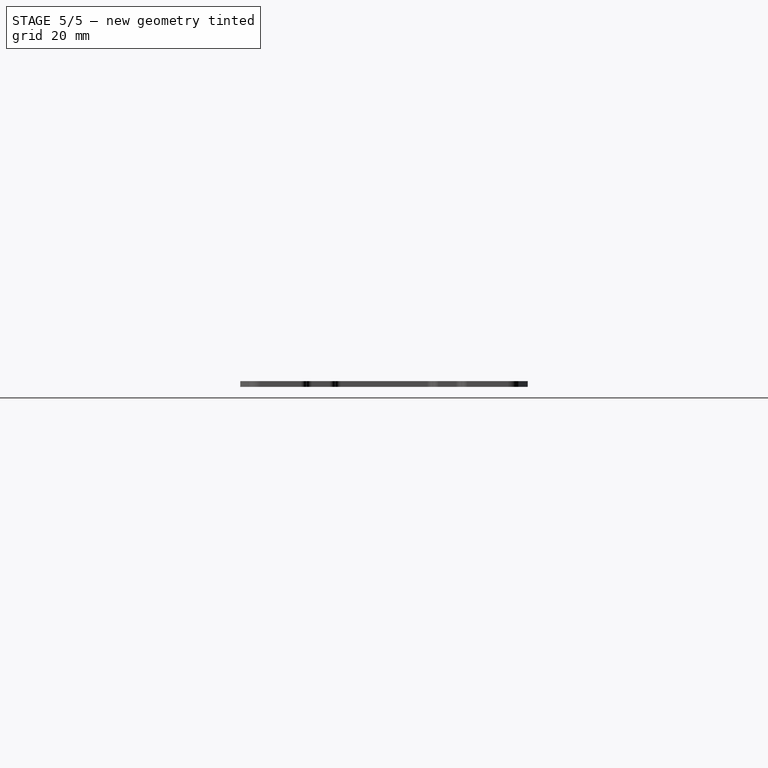
[diagram: stage 5 of 5 — right view after this stage's code; geometry added in this stage tinted green]
FEATURE [Part::Extrusion] Extrude001
  Base = -> Sketch049
  Dir = (0,0,1)
  Solid = true
FEATURE [Sketcher::SketchObject] Sketch064
  sketch-geometry (1):
    g0: Circle CenterX=10.5 CenterY=0 CenterZ=0 NormalX=0 NormalY=0 NormalZ=1 Radius=1.5
  constraints (1):
    c: PointOnObject(g0,g-1)
FEATURE [Part::Extrusion] Extrude002
  Base = -> Sketch064
  Dir = (0,0,1)
  Solid = true
FEATURE [Sketcher::SketchObject] Sketch065
  Placement = pos=(0.5,1.5,0) rot=(0,0,1;0rad)
  sketch-geometry (1):
    g0: Circle CenterX=-23.5 CenterY=20.5 CenterZ=0 NormalX=0 NormalY=0 NormalZ=1 Radius=1
FEATURE [Part::Extrusion] Extrude003
  Base = -> Sketch065
  Dir = (0,0,1)
  Solid = true
FEATURE [Sketcher::SketchObject] Sketch066
  Placement = pos=(0.5,1.5,0) rot=(0,0,1;0rad)
  sketch-geometry (1):
    g0: Circle CenterX=-23.5 CenterY=20.5 CenterZ=0 NormalX=0 NormalY=0 NormalZ=1 Radius=1
FEATURE [Part::Extrusion] Extrude004
  Base = -> Sketch066
  Dir = (0,0,1)
  Placement = pos=(2,-44,0) rot=(0,0,1;0rad)
  Solid = true
FEATURE [Sketcher::SketchObject] Sketch067
  Placement = pos=(0.5,1.5,0) rot=(0,0,1;0rad)
  sketch-geometry (1):
    g0: Circle CenterX=-23.5 CenterY=20.5 CenterZ=0 NormalX=0 NormalY=0 NormalZ=1 Radius=1
FEATURE [Part::Extrusion] Extrude005
  Base = -> Sketch067
  Dir = (0,0,1)
  Placement = pos=(-2,-44,0) rot=(0,0,1;0rad)
  Solid = true
FEATURE [Sketcher::SketchObject] Sketch068
  Placement = pos=(0.5,1.5,0) rot=(0,0,1;0rad)
  sketch-geometry (1):
    g0: Circle CenterX=-23.5 CenterY=20.5 CenterZ=0 NormalX=0 NormalY=0 NormalZ=1 Radius=1
FEATURE [Part::Extrusion] Extrude006
  Base = -> Sketch068
  Dir = (0,0,1)
  Placement = pos=(-5.5,-43,0) rot=(0,0,1;0rad)
  Solid = true
FEATURE [Part::MultiFuse] Fusion002
  Shapes = -> [Extrude001,Extrude002,Extrude006,Extrude005,Extrude004,Extrude003]
FEATURE [Part::Cut] Cut002  label="SC8000-A!wrong"
  Base = -> Cut001
  Tool = -> Fusion002
FEATURE [Part::Mirroring] Part__Mirroring  label="SC8000-A"
  Base = (0,0,0)
  Normal = (0,1,0)
  Source = -> Cut002
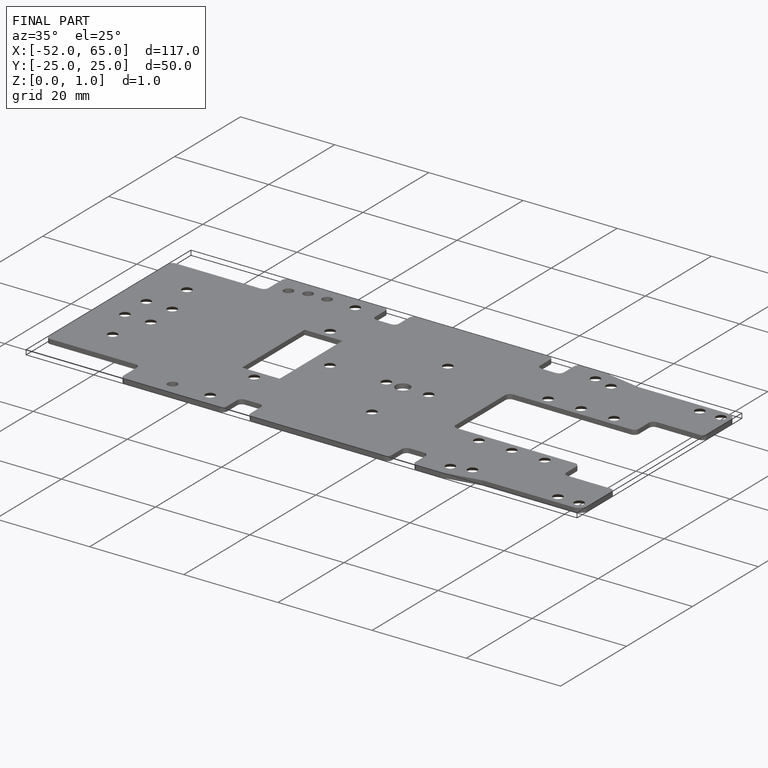
[diagram: finished part — iso view with bounding-box wireframe]
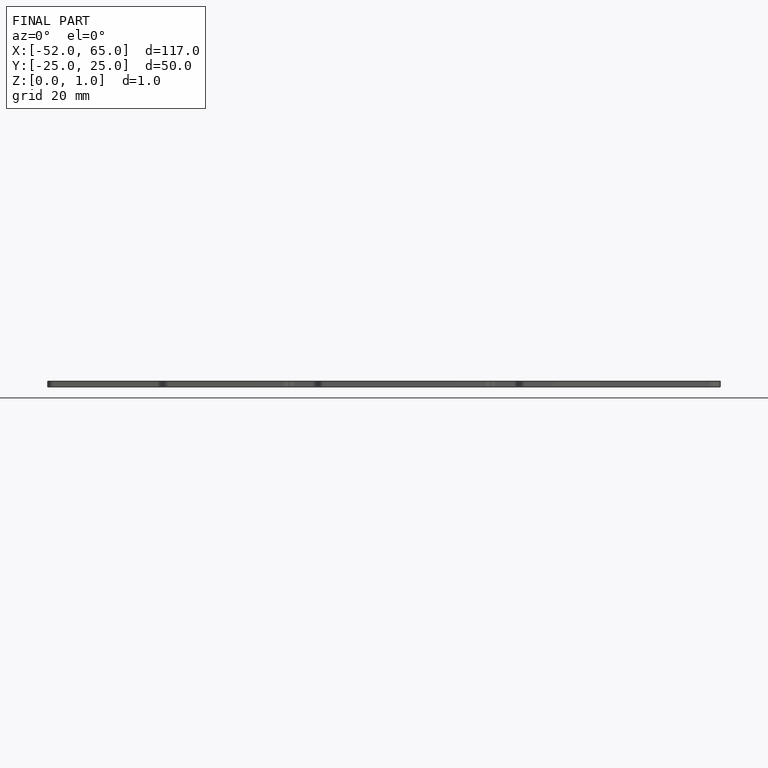
[diagram: finished part — front view with bounding-box wireframe]
